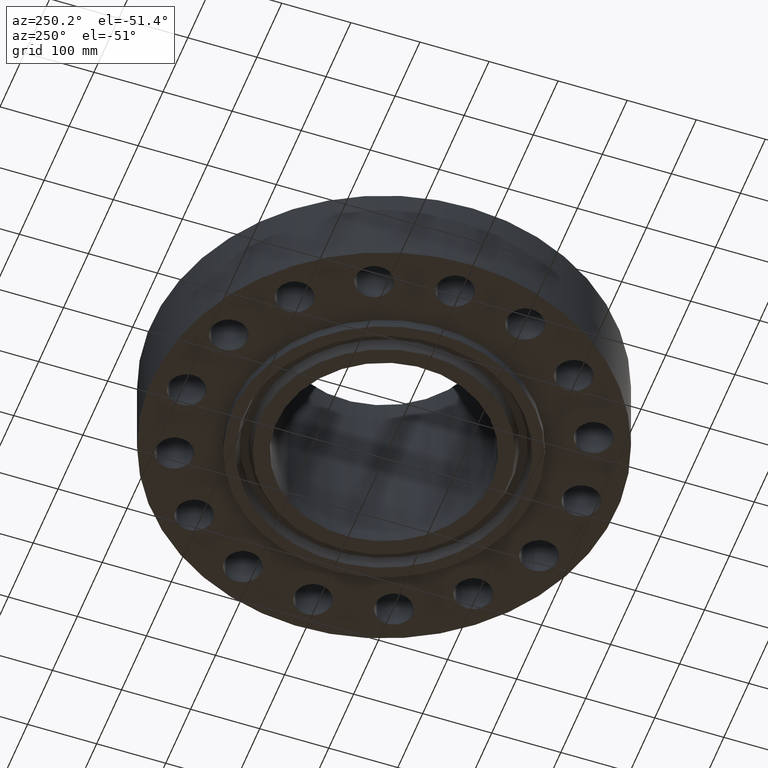
[diagram: clean part render]
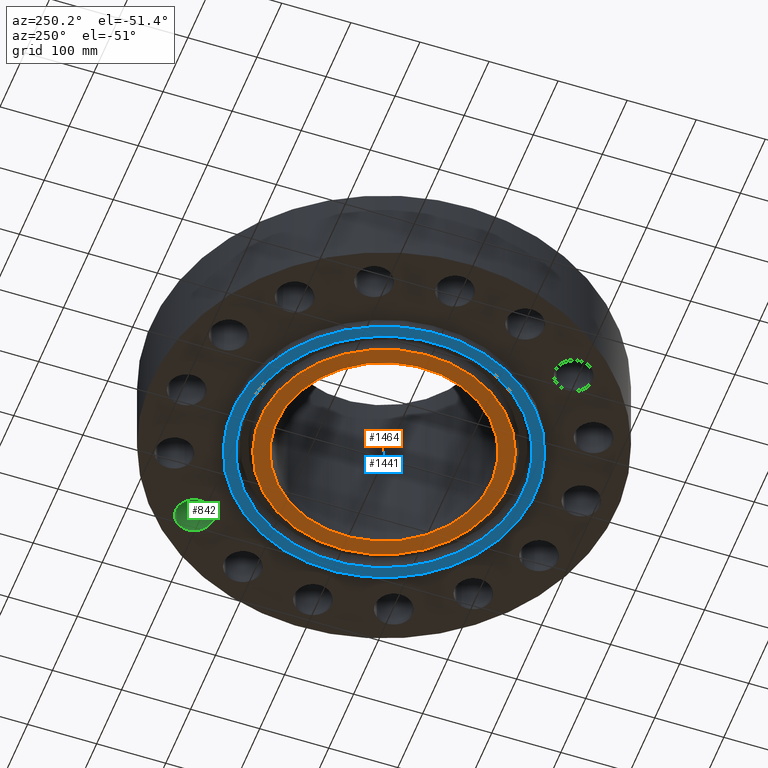
[diagram: same view with three faces highlighted in distinct colors, each labeled with its STEP entity id]
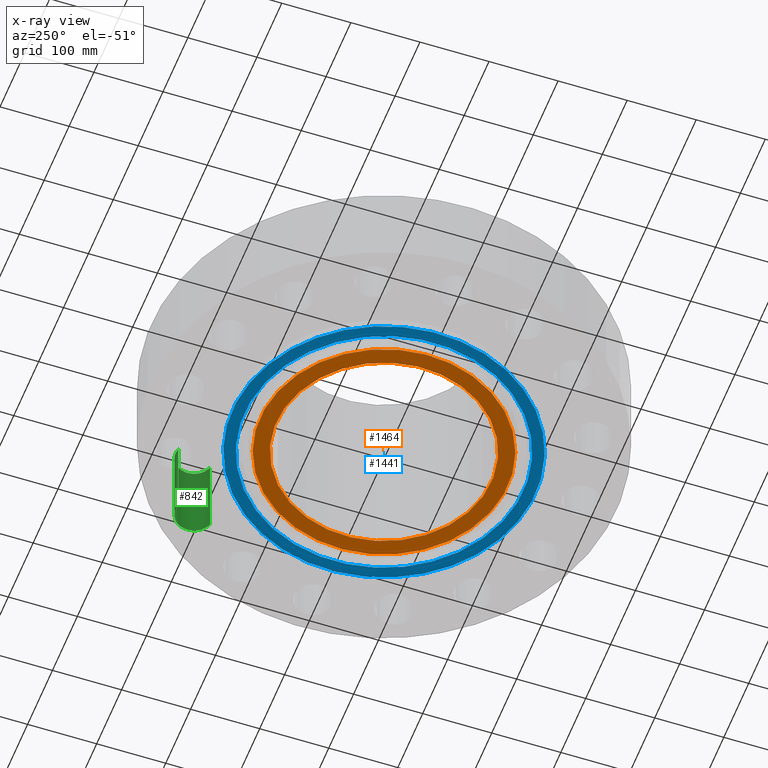
[diagram: x-ray of the same camera — body ghosted, the three highlighted faces saturated]
A machine part, auxiliary view with three faces highlighted in distinct colors.
The next image is the same camera in x-ray (body ghosted, the three faces saturated) — at least one of them is partly hidden behind the body in this view.
Their STEP definitions:

[orange] entity #1464 — the highlighted planar face has unit normal (0, 0, -1).
#363=AXIS2_PLACEMENT_3D('Circle Axis2P3D',#361,#362,$) ;
#387=AXIS2_PLACEMENT_3D('Circle Axis2P3D',#385,#386,$) ;
#1417=AXIS2_PLACEMENT_3D('Plane Axis2P3D',#1414,#1415,#1416) ;
#1444=AXIS2_PLACEMENT_3D('Circle Axis2P3D',#1442,#1443,$) ;
#1453=AXIS2_PLACEMENT_3D('Circle Axis2P3D',#1451,#1452,$) ;
#358=CARTESIAN_POINT('Vertex',(2.93648142396,5.3751931916,-0.563000000002)) ;
#361=CARTESIAN_POINT('Axis2P3D Location',(0.,0.,-0.563000000002)) ;
#365=CARTESIAN_POINT('Vertex',(-2.93648142396,-5.3751931916,-0.563000000002)) ;
#385=CARTESIAN_POINT('Axis2P3D Location',(0.,0.,-0.563000000002)) ;
#1414=CARTESIAN_POINT('Axis2P3D Location',(0.,6.12500000002,-0.563000000002)) ;
#1442=CARTESIAN_POINT('Axis2P3D Location',(0.,1.1189649382E-015,-0.563000000002)) ;
#1446=CARTESIAN_POINT('Vertex',(-3.37851177056,6.18432431367,-0.563000000002)) ;
#1448=CARTESIAN_POINT('Vertex',(3.37851177056,-6.18432431367,-0.563000000002)) ;
#1451=CARTESIAN_POINT('Axis2P3D Location',(2.23792987641E-015,-1.1189649382E-015,-0.563000000002)) ;
#362=DIRECTION('Axis2P3D Direction',(0.,0.,-0.0393700787402)) ;
#386=DIRECTION('Axis2P3D Direction',(0.,0.,-0.0393700787402)) ;
#1415=DIRECTION('Axis2P3D Direction',(0.,0.,-0.0393700787402)) ;
#1416=DIRECTION('Axis2P3D XDirection',(0.0393700787402,0.,0.)) ;
#1443=DIRECTION('Axis2P3D Direction',(0.,0.,-0.0393700787402)) ;
#1452=DIRECTION('Axis2P3D Direction',(0.,0.,-0.0393700787402)) ;
#1457=ORIENTED_EDGE('',*,*,#1450,.T.) ;
#1458=ORIENTED_EDGE('',*,*,#1455,.T.) ;
#1461=ORIENTED_EDGE('',*,*,#367,.F.) ;
#1462=ORIENTED_EDGE('',*,*,#389,.F.) ;
#1463=FACE_BOUND('',#1460,.T.) ;
#1464=ADVANCED_FACE('PartBody',(#1459,#1463),#1418,.T.) ;
#364=CIRCLE('generated circle',#363,6.12500000002) ;
#388=CIRCLE('generated circle',#387,6.12500000002) ;
#1445=CIRCLE('generated circle',#1444,7.04700000003) ;
#1454=CIRCLE('generated circle',#1453,7.04700000003) ;
#367=EDGE_CURVE('',#359,#366,#364,.T.) ;
#389=EDGE_CURVE('',#366,#359,#388,.T.) ;
#1450=EDGE_CURVE('',#1447,#1449,#1445,.T.) ;
#1455=EDGE_CURVE('',#1449,#1447,#1454,.T.) ;
#1456=EDGE_LOOP('',(#1457,#1458)) ;
#1460=EDGE_LOOP('',(#1461,#1462)) ;
#1459=FACE_OUTER_BOUND('',#1456,.T.) ;
#1418=PLANE('',#1417) ;
#359=VERTEX_POINT('',#358) ;
#366=VERTEX_POINT('',#365) ;
#1447=VERTEX_POINT('',#1446) ;
#1449=VERTEX_POINT('',#1448) ;

[blue] entity #1441 — the highlighted planar face has unit normal (0, 0, -1).
#431=AXIS2_PLACEMENT_3D('Circle Axis2P3D',#429,#430,$) ;
#466=AXIS2_PLACEMENT_3D('Circle Axis2P3D',#464,#465,$) ;
#1417=AXIS2_PLACEMENT_3D('Plane Axis2P3D',#1414,#1415,#1416) ;
#1425=AXIS2_PLACEMENT_3D('Circle Axis2P3D',#1423,#1424,$) ;
#1434=AXIS2_PLACEMENT_3D('Circle Axis2P3D',#1432,#1433,$) ;
#429=CARTESIAN_POINT('Axis2P3D Location',(0.,0.,-0.563000000002)) ;
#433=CARTESIAN_POINT('Vertex',(-4.13504527048,-7.56914959633,-0.563000000002)) ;
#435=CARTESIAN_POINT('Vertex',(4.13504527048,7.56914959633,-0.563000000002)) ;
#464=CARTESIAN_POINT('Axis2P3D Location',(0.,0.,-0.563000000002)) ;
#1414=CARTESIAN_POINT('Axis2P3D Location',(0.,6.12500000002,-0.563000000002)) ;
#1423=CARTESIAN_POINT('Axis2P3D Location',(2.79741234551E-016,1.1189649382E-015,-0.563000000002)) ;
#1427=CARTESIAN_POINT('Vertex',(3.81287130853,-6.97941411474,-0.563000000002)) ;
#1429=CARTESIAN_POINT('Vertex',(-3.81287130853,6.97941411474,-0.563000000002)) ;
#1432=CARTESIAN_POINT('Axis2P3D Location',(2.79741234551E-016,0.,-0.563000000002)) ;
#430=DIRECTION('Axis2P3D Direction',(0.,0.,-0.0393700787402)) ;
#465=DIRECTION('Axis2P3D Direction',(0.,0.,-0.0393700787402)) ;
#1415=DIRECTION('Axis2P3D Direction',(0.,0.,-0.0393700787402)) ;
#1416=DIRECTION('Axis2P3D XDirection',(0.0393700787402,0.,0.)) ;
#1424=DIRECTION('Axis2P3D Direction',(0.,0.,-0.0393700787402)) ;
#1433=DIRECTION('Axis2P3D Direction',(0.,0.,-0.0393700787402)) ;
#1420=ORIENTED_EDGE('',*,*,#437,.T.) ;
#1421=ORIENTED_EDGE('',*,*,#468,.T.) ;
#1438=ORIENTED_EDGE('',*,*,#1431,.F.) ;
#1439=ORIENTED_EDGE('',*,*,#1436,.F.) ;
#1440=FACE_BOUND('',#1437,.T.) ;
#1441=ADVANCED_FACE('PartBody',(#1422,#1440),#1418,.T.) ;
#432=CIRCLE('generated circle',#431,8.62500000003) ;
#467=CIRCLE('generated circle',#466,8.62500000003) ;
#1426=CIRCLE('generated circle',#1425,7.95300000003) ;
#1435=CIRCLE('generated circle',#1434,7.95300000003) ;
#437=EDGE_CURVE('',#434,#436,#432,.T.) ;
#468=EDGE_CURVE('',#436,#434,#467,.T.) ;
#1431=EDGE_CURVE('',#1428,#1430,#1426,.T.) ;
#1436=EDGE_CURVE('',#1430,#1428,#1435,.T.) ;
#1419=EDGE_LOOP('',(#1420,#1421)) ;
#1437=EDGE_LOOP('',(#1438,#1439)) ;
#1422=FACE_OUTER_BOUND('',#1419,.T.) ;
#1418=PLANE('',#1417) ;
#434=VERTEX_POINT('',#433) ;
#436=VERTEX_POINT('',#435) ;
#1428=VERTEX_POINT('',#1427) ;
#1430=VERTEX_POINT('',#1429) ;

[green] entity #842 — the highlighted cylindrical surface (edge-blend (fillet) strip) has radius 26.924 mm, axis along (0, -0, -1).
#518=AXIS2_PLACEMENT_3D('Circle Axis2P3D',#516,#517,$) ;
#815=AXIS2_PLACEMENT_3D('Cylinder Axis2P3D',#812,#813,#814) ;
#833=AXIS2_PLACEMENT_3D('Circle Axis2P3D',#831,#832,$) ;
#516=CARTESIAN_POINT('Axis2P3D Location',(7.95495128838,7.95495128838,0.)) ;
#520=CARTESIAN_POINT('Vertex',(7.65651938537,8.97207389617,0.)) ;
#522=CARTESIAN_POINT('Vertex',(8.25338319139,6.93782868059,0.)) ;
#812=CARTESIAN_POINT('Axis2P3D Location',(7.95495128838,7.95495128838,4.87606299215)) ;
#817=CARTESIAN_POINT('Line Origine',(7.65651938537,8.97207389617,2.44000000001)) ;
#821=CARTESIAN_POINT('Vertex',(7.65651938537,8.97207389617,4.88000000002)) ;
#824=CARTESIAN_POINT('Line Origine',(8.25338319139,6.93782868059,2.44000000001)) ;
#828=CARTESIAN_POINT('Vertex',(8.25338319139,6.93782868059,4.88000000002)) ;
#831=CARTESIAN_POINT('Axis2P3D Location',(7.95495128838,7.95495128838,4.88000000002)) ;
#517=DIRECTION('Axis2P3D Direction',(0.,0.,-0.0393700787402)) ;
#813=DIRECTION('Axis2P3D Direction',(0.,-0.,-0.0393700787402)) ;
#814=DIRECTION('Axis2P3D XDirection',(0.0110842335096,-0.0377775444876,0.)) ;
#818=DIRECTION('Vector Direction',(0.,0.,-0.0393700787402)) ;
#825=DIRECTION('Vector Direction',(0.,0.,-0.0393700787402)) ;
#832=DIRECTION('Axis2P3D Direction',(0.,-0.,-0.0393700787402)) ;
#819=VECTOR('Line Direction',#818,0.0393700787402) ;
#826=VECTOR('Line Direction',#825,0.0393700787402) ;
#837=ORIENTED_EDGE('',*,*,#823,.F.) ;
#838=ORIENTED_EDGE('',*,*,#524,.T.) ;
#839=ORIENTED_EDGE('',*,*,#830,.T.) ;
#840=ORIENTED_EDGE('',*,*,#835,.F.) ;
#842=ADVANCED_FACE('PartBody',(#841),#816,.F.) ;
#519=CIRCLE('generated circle',#518,1.06) ;
#834=CIRCLE('generated circle',#833,1.06) ;
#816=CYLINDRICAL_SURFACE('generated cylinder',#815,1.06) ;
#524=EDGE_CURVE('',#521,#523,#519,.T.) ;
#823=EDGE_CURVE('',#521,#822,#820,.F.) ;
#830=EDGE_CURVE('',#523,#829,#827,.F.) ;
#835=EDGE_CURVE('',#822,#829,#834,.T.) ;
#836=EDGE_LOOP('',(#837,#838,#839,#840)) ;
#841=FACE_OUTER_BOUND('',#836,.T.) ;
#820=LINE('Line',#817,#819) ;
#827=LINE('Line',#824,#826) ;
#521=VERTEX_POINT('',#520) ;
#523=VERTEX_POINT('',#522) ;
#822=VERTEX_POINT('',#821) ;
#829=VERTEX_POINT('',#828) ;